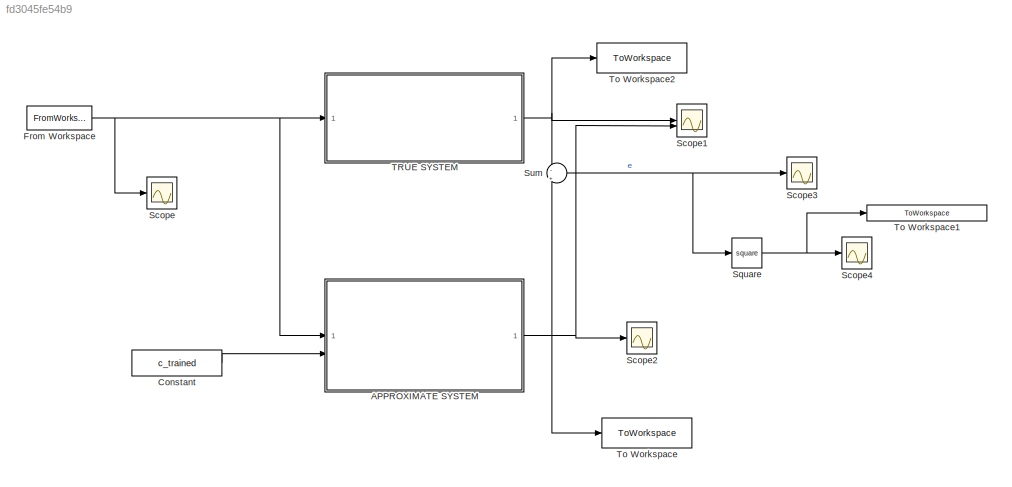
MODEL slx_fd3045fe54b9
KIND model
CONFIG AbsTol = auto
CONFIG EnableMultiTasking = off
CONFIG FixedStep = ST
CONFIG MaxStep = auto
CONFIG MinStep = auto
CONFIG RelTol = 1e-3
CONFIG SampleTimeConstraint = Unconstrained
CONFIG SolverName = FixedStepAuto
CONFIG StartTime = 0.0
CONFIG StopTime = time_test(end)
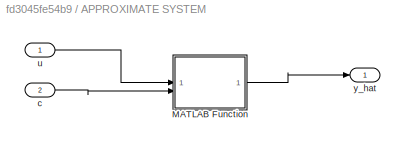
BLOCK [SubSystem] APPROXIMATE SYSTEM
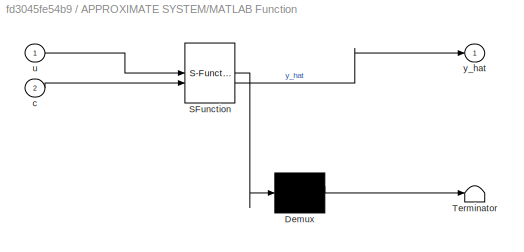
BLOCK [SubSystem] APPROXIMATE SYSTEM/MATLAB Function
  ErrorFcn = Stateflow.Translate.translate
  PermitHierarchicalResolution = ExplicitOnly
  SFBlockType = MATLAB Function
  TreatAsAtomicUnit = on
BLOCK [Demux] APPROXIMATE SYSTEM/MATLAB Function/ Demux 
  Outputs = 1
BLOCK [S-Function] APPROXIMATE SYSTEM/MATLAB Function/ SFunction 
  EnableBusSupport = on
  FunctionName = sf_sfun
  Parameters = delta,n_nodes
  PortCounts = [2 2]
  SFcnIsStateOwnerBlock = off
  SFunctionDeploymentMode = off
  Tag = Stateflow S-Function 1
BLOCK [Terminator] APPROXIMATE SYSTEM/MATLAB Function/ Terminator 
BLOCK [Inport] APPROXIMATE SYSTEM/MATLAB Function/c
  Port = 2
BLOCK [Inport] APPROXIMATE SYSTEM/MATLAB Function/u
BLOCK [Outport] APPROXIMATE SYSTEM/MATLAB Function/y_hat
BLOCK [Inport] APPROXIMATE SYSTEM/c
  Port = 2
BLOCK [Inport] APPROXIMATE SYSTEM/u
BLOCK [Outport] APPROXIMATE SYSTEM/y_hat
BLOCK [Constant] Constant
  Value = c_trained
BLOCK [FromWorkspace] From Workspace
  SampleTime = ST
  VariableName = [time_test u_test]
BLOCK [Scope] Scope
  Floating = off
  NumInputPorts = 1
  ScopeSpecificationString = Simulink.scopes.TimeScopeBlockCfg('CurrentConfiguration', extmgr.ConfigurationSet(extmgr.Configuration('Core','General UI',true),extmgr.Configuration('Core','Source UI',true),extmgr.Configuration('Sources','WiredSimulink',true),extmgr.Configuration('Visuals','Time Domain',true,'SerializedDisplays',{struct('MinYLimReal','-1.79165','MaxYLimReal','1.85863','YLabelReal','','MinYLimMag','0.00000','MaxY...<+1463ch>
BLOCK [Scope] Scope1
  Floating = off
  NumInputPorts = 2
  ScopeSpecificationString = Simulink.scopes.TimeScopeBlockCfg('CurrentConfiguration', extmgr.ConfigurationSet(extmgr.Configuration('Core','General UI',true),extmgr.Configuration('Core','Source UI',true),extmgr.Configuration('Sources','WiredSimulink',true,'DataLoggingVariableName','ScopeData1'),extmgr.Configuration('Visuals','Time Domain',true,'SerializedDisplays',{struct('MinYLimReal','-0.20092','MaxYLimReal','0.20073','YLab...<+1564ch>
BLOCK [Scope] Scope2
  Floating = off
  NumInputPorts = 1
  ScopeSpecificationString = Simulink.scopes.TimeScopeBlockCfg('CurrentConfiguration', extmgr.ConfigurationSet(extmgr.Configuration('Core','General UI',true),extmgr.Configuration('Core','Source UI',true),extmgr.Configuration('Sources','WiredSimulink',true,'DataLoggingVariableName','ScopeData2'),extmgr.Configuration('Visuals','Time Domain',true,'SerializedDisplays',{struct('MinYLimReal','-0.20092','MaxYLimReal','0.20073','YLab...<+1508ch>
BLOCK [Scope] Scope3
  Floating = off
  NumInputPorts = 1
  ScopeSpecificationString = Simulink.scopes.TimeScopeBlockCfg('CurrentConfiguration', extmgr.ConfigurationSet(extmgr.Configuration('Core','General UI',true),extmgr.Configuration('Core','Source UI',true),extmgr.Configuration('Sources','WiredSimulink',true,'DataLoggingVariableName','ScopeData3'),extmgr.Configuration('Visuals','Time Domain',true,'SerializedDisplays',{struct('MinYLimReal','-0.01833','MaxYLimReal','0.02445','YLab...<+1533ch>
BLOCK [Scope] Scope4
  Floating = off
  NumInputPorts = 1
  ScopeSpecificationString = Simulink.scopes.TimeScopeBlockCfg('CurrentConfiguration', extmgr.ConfigurationSet(extmgr.Configuration('Core','General UI',true),extmgr.Configuration('Core','Source UI',true),extmgr.Configuration('Sources','WiredSimulink',true,'DataLoggingVariableName','ScopeData1'),extmgr.Configuration('Visuals','Time Domain',true,'SerializedDisplays',{struct('MinYLimReal','-0.00005','MaxYLimReal','0.00046','YLab...<+1538ch>
BLOCK [Math] Square
  Operator = square
BLOCK [Sum] Sum
  Inputs = -|+
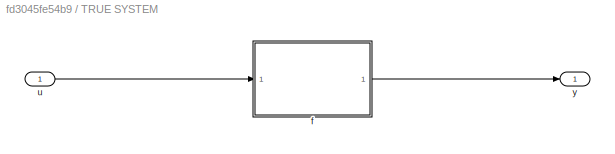
BLOCK [SubSystem] TRUE SYSTEM
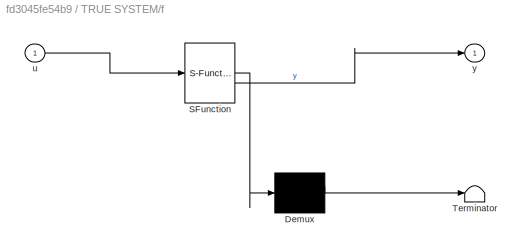
BLOCK [SubSystem] TRUE SYSTEM/f
  ErrorFcn = Stateflow.Translate.translate
  PermitHierarchicalResolution = ExplicitOnly
  SFBlockType = MATLAB Function
  TreatAsAtomicUnit = on
BLOCK [Demux] TRUE SYSTEM/f/ Demux 
  Outputs = 1
BLOCK [S-Function] TRUE SYSTEM/f/ SFunction 
  EnableBusSupport = on
  FunctionName = sf_sfun
  PortCounts = [1 2]
  SFcnIsStateOwnerBlock = off
  SFunctionDeploymentMode = off
  Tag = Stateflow S-Function 2
BLOCK [Terminator] TRUE SYSTEM/f/ Terminator 
BLOCK [Inport] TRUE SYSTEM/f/u
BLOCK [Outport] TRUE SYSTEM/f/y
BLOCK [Inport] TRUE SYSTEM/u
BLOCK [Outport] TRUE SYSTEM/y
BLOCK [ToWorkspace] To Workspace
  FixptAsFi = on
  MaxDataPoints = inf
  SampleTime = -1
  SaveFormat = Timeseries
  VariableName = test_y_hat
BLOCK [ToWorkspace] To Workspace1
  FixptAsFi = on
  MaxDataPoints = inf
  SampleTime = -1
  SaveFormat = Timeseries
  VariableName = test_squared_error_training
BLOCK [ToWorkspace] To Workspace2
  FixptAsFi = on
  MaxDataPoints = inf
  SampleTime = -1
  SaveFormat = Timeseries
  VariableName = test_y
LINE APPROXIMATE SYSTEM/MATLAB Function:1 -> APPROXIMATE SYSTEM/y_hat:1
LINE APPROXIMATE SYSTEM/c:1 -> APPROXIMATE SYSTEM/MATLAB Function:2
LINE APPROXIMATE SYSTEM/u:1 -> APPROXIMATE SYSTEM/MATLAB Function:1
NET APPROXIMATE SYSTEM:1 -> Scope1:2, Scope2:1, Sum:2, To Workspace:1
LINE Constant:1 -> APPROXIMATE SYSTEM:2
NET From Workspace:1 -> APPROXIMATE SYSTEM:1, Scope:1, TRUE SYSTEM:1
NET Square:1 -> Scope4:1, To Workspace1:1
NET Sum:1 -> Scope3:1, Square:1
LINE TRUE SYSTEM/f:1 -> TRUE SYSTEM/y:1
LINE TRUE SYSTEM/u:1 -> TRUE SYSTEM/f:1
NET TRUE SYSTEM:1 -> Scope1:1, Sum:1, To Workspace2:1
note: NET lines group one-source signal fan-out (src -> all destinations, sorted); 1:1 wires keep LINE
CHART APPROXIMATE SYSTEM/MATLAB Function states=1 transitions=1
  STATE_LABEL 'eML_blk_kernel()'
  STATE_LABEL 'SCRIPT:\nfunction y_hat = f_hat(u, c, delta, n_nodes)\n\ny_hat_temp = 0;\n\nshift = ceil(n_nodes/2);\n\nfor i = 1:length(c)\n    k = i-shift;\n    y_hat_temp = y_hat_temp + c(i)*grf(u, k, delta);\nend\n\ny_hat = y_hat_temp;\n'
CHART TRUE SYSTEM/f states=1 transitions=1
  STATE_LABEL 'eML_blk_kernel()'
  STATE_LABEL 'SCRIPT:\nfunction y = fcn(u)\n\ny = true_system(u);\n'
CHART  states=0 transitions=0
CHART  states=0 transitions=0
